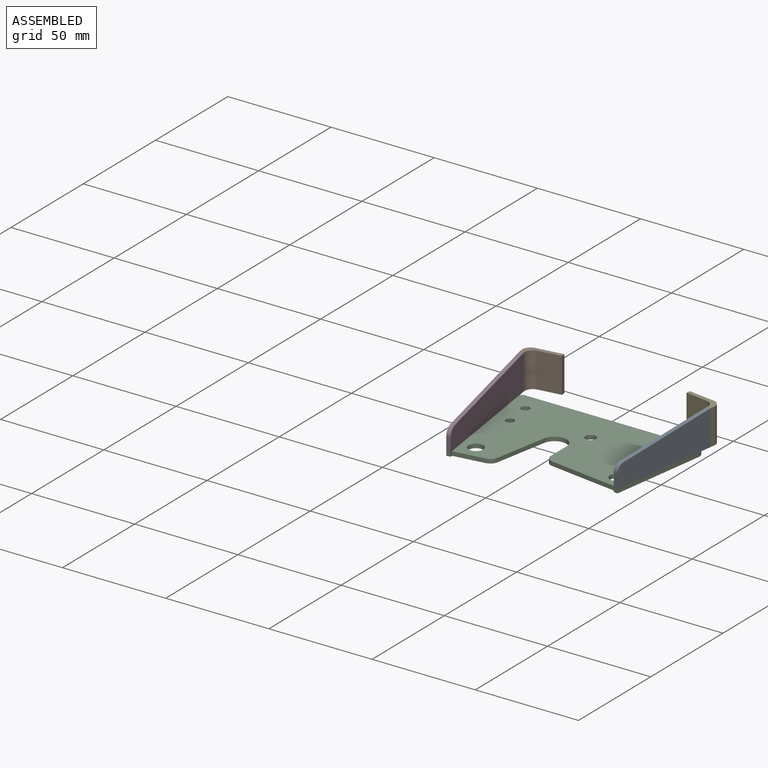
[diagram: assembled view]
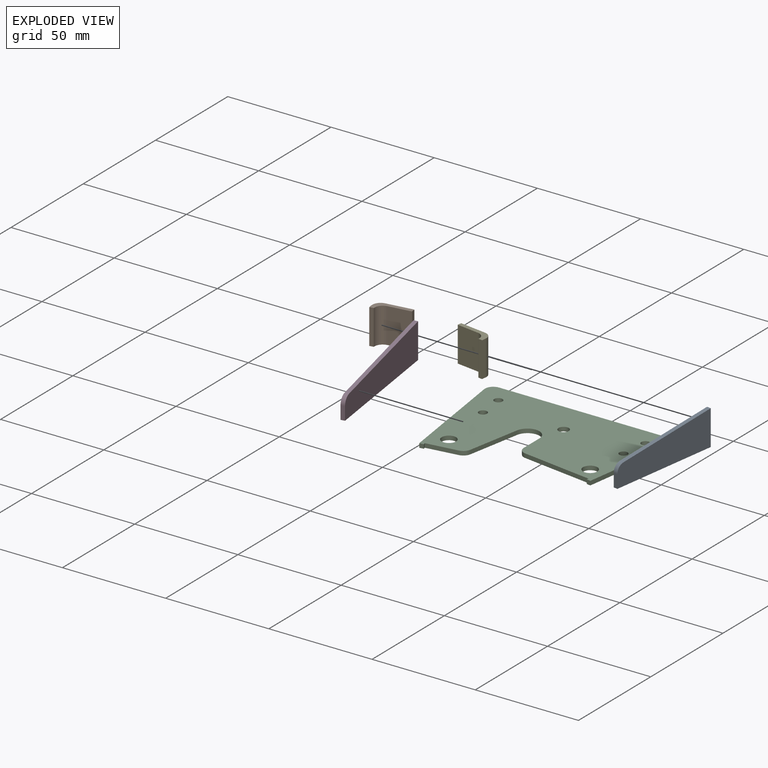
[diagram: exploded view]
GUIDED TOUR — MATED ASSEMBLY (Onshape document 82c68f5eec5fc6f6060abe82, AutoMate assembly 82c68f5eec5fc6f6060abe82_d45fb67a8cab9a437514f168_80f5d379e176ab46315c1f89_default)

This assembly has 5 components, labeled P0..P4 below (a component is one placed occurrence of a part; the same part can appear more than once), held together by 4 mates. A mate is a constraint between two components; its type names the relative motion it leaves free:
  PLANAR — leaves sliding in the plane through the listed point (normal = the listed direction) and rotation about that normal free.
Axis/direction vectors are unit vectors and 'through' points are millimeter coordinates, both in the assembly's world frame.

MATES
  1. PLANAR "Planar 1": P3 <-> P2, direction (0.990, 0.140, 0.000) through (-32.28, -29.59, -0.63) mm
  2. PLANAR "Planar 3": P0 <-> P2, direction (-0.990, 0.144, 0.000) through (41.67, -19.58, -0.63) mm
  3. PLANAR "Planar 4": P4 <-> P0, direction (-0.990, 0.144, 0.000) through (49.45, 33.85, 16.37) mm
  4. PLANAR "Planar 2": P1 <-> P3, direction (0.990, 0.140, 0.000) through (-41.26, 33.78, 16.37) mm

ASSEMBLY ORDER
  1. P4 — the base component [order verified]
  2. P0 [order verified]
  3. P1 [order verified]
  4. P3 [order verified]
  5. P2 [order verified]
Order-tag legend:
  [order verified] — this step's position reverses a verified removal order: the component was checked to insert without passing through the ones already placed.

Of the 5 components, 5 carry the full construction recipe — the FeatureScript program that regenerates the part's solid from scratch; the rest are supplied as boundary geometry only.
Each toured component is shown spotlighted twice — in the assembled view, then in the exploded view, where a leader line traces a displaced component back to its assembled socket (saturated green if recipe-attached, orange if geometry-only; every other component desaturated gray) — followed by its recipe or geometry summary and the mates that hold it.
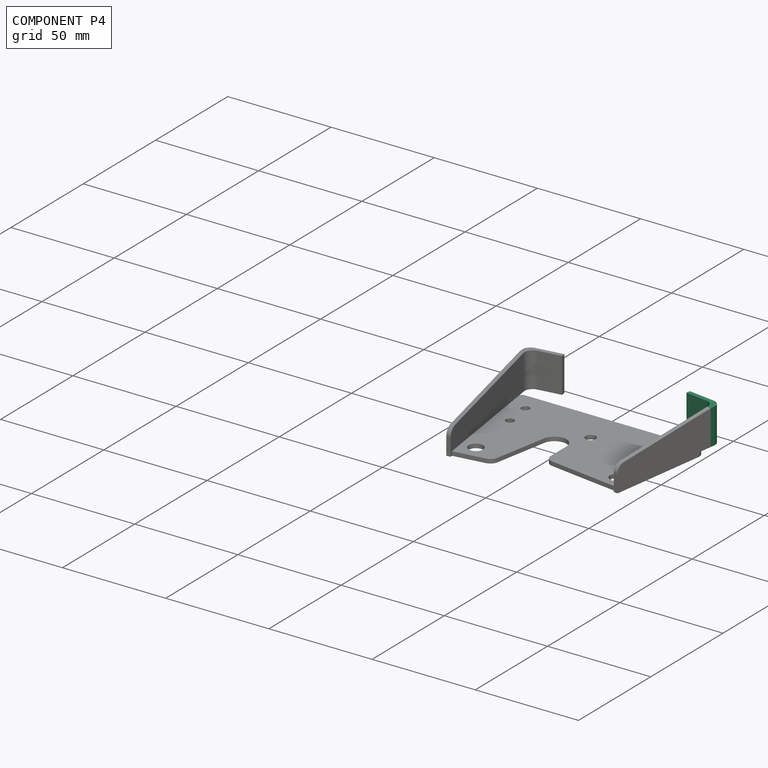
[diagram: component P4 — assembled]
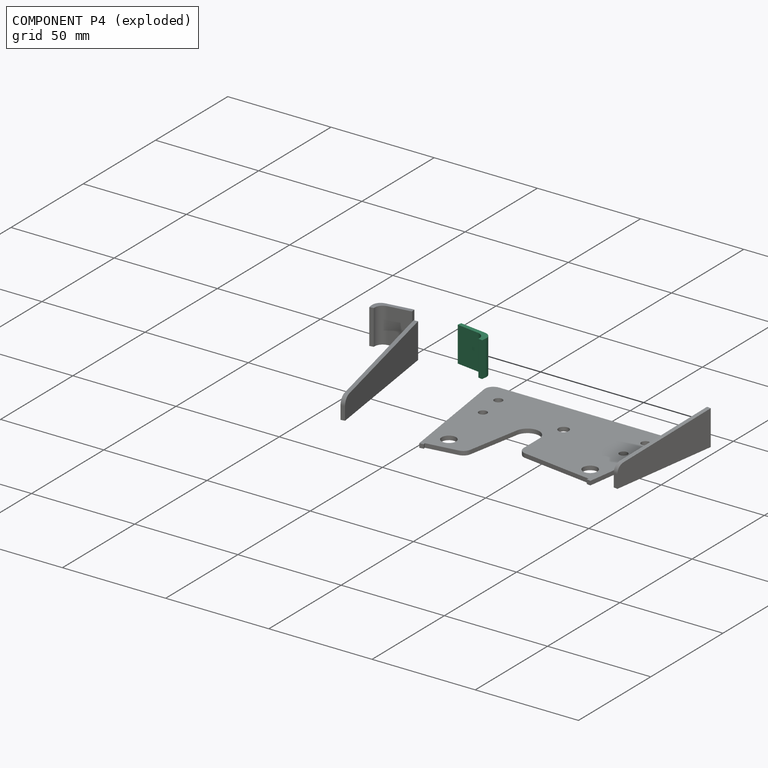
[diagram: component P4 — exploded]
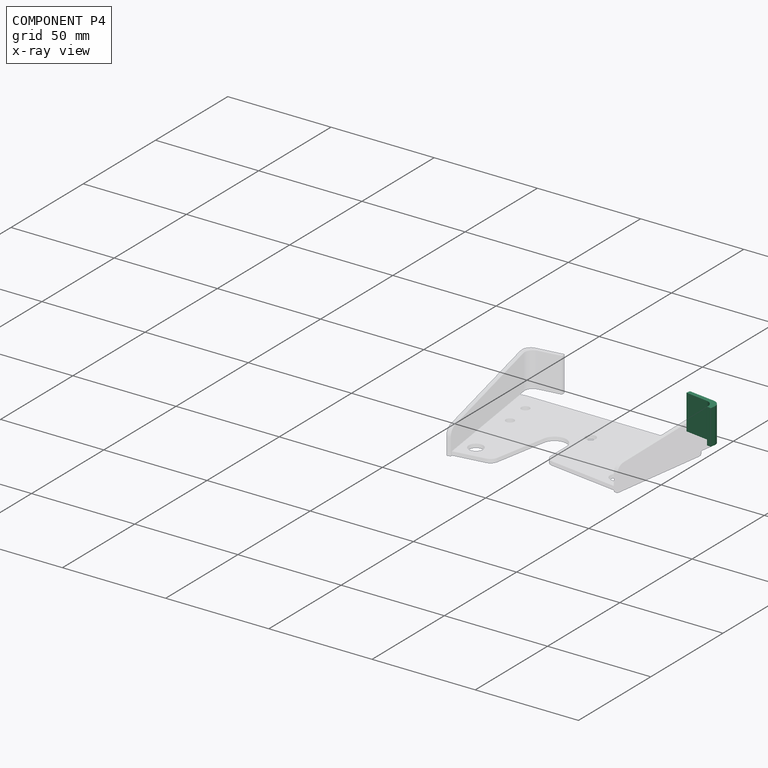
[diagram: component P4 — x-ray view]
COMPONENT P4 — same part as P1 (CADFS 00765707); its construction recipe is shown at P1.
Held by: PLANAR mate "Planar 4" to P0.
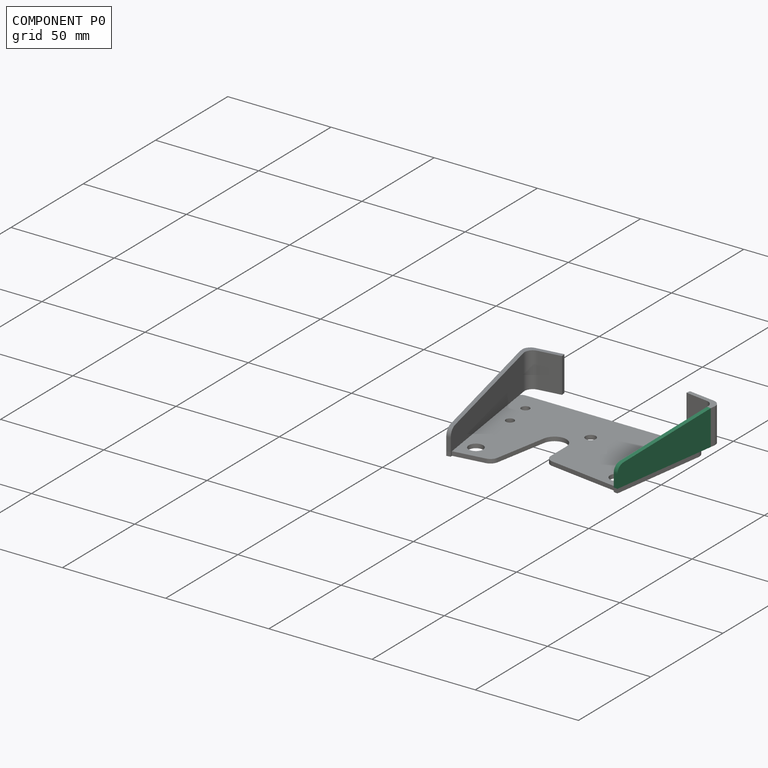
[diagram: component P0 — assembled]
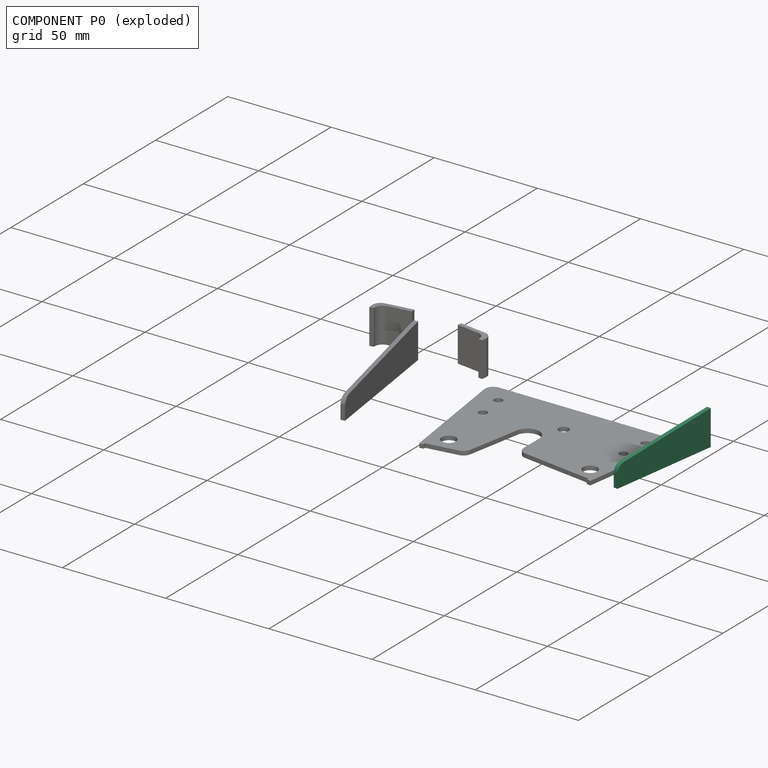
[diagram: component P0 — exploded]
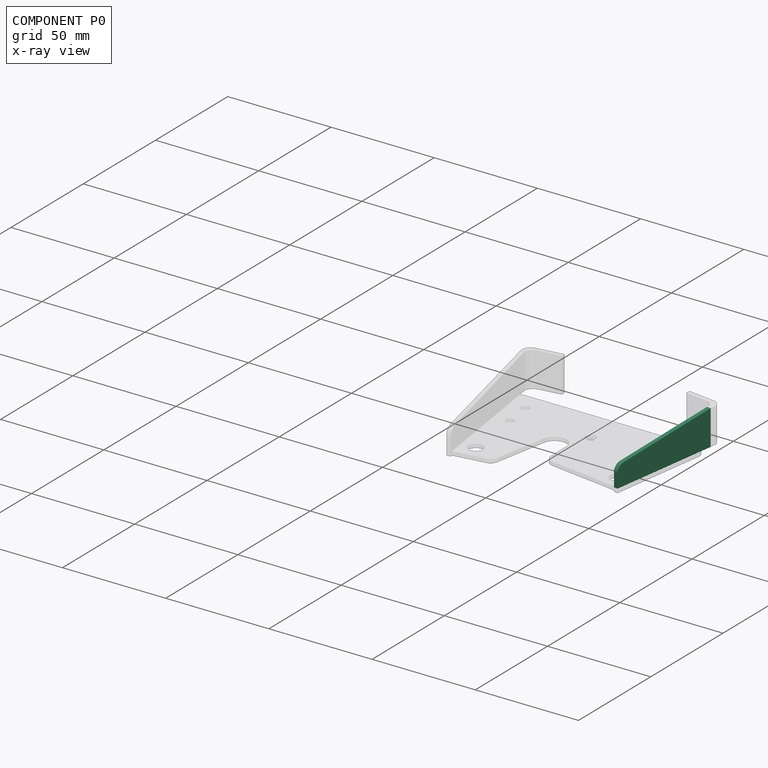
[diagram: component P0 — x-ray view]
COMPONENT P0 — recipe-attached (CADFS 00765706, mesh-verified: the recipe's output STEP matches this component's geometry to below the mesh-comparison resolution (tessellation chordal tolerance ~0.085 mm)).
Held by: PLANAR mate "Planar 3" to P2; PLANAR mate "Planar 4" to P4.
Construction recipe (FeatureScript — the CAD program that rebuilds this solid; sketch coordinates are in the units given by the * unit suffixes, e.g. mm):

FeatureScript 1511;
import(path : "onshape/std/geometry.fs", version : "1511.0");
import(path : "onshape/std/common.fs", version : "1511.0");
const mm = millimeter;
const VERTEX = EntityType.VERTEX;
const EDGE = EntityType.EDGE;
const FACE = EntityType.FACE;
const BODY = EntityType.BODY;
function v(x, y){return vector(x, y);}
function OD(order){return orderDisambiguation(order);}
function OSD(set){return originalSetDisambiguation(set);}
function TD(topology){return topologyDisambiguation(topology);}
function TDD(query){return trueDependencyDisambiguation(query);}
function sQuery(a, b, c) {return sketchEntityQuery(a, b, c);}

annotation { "Feature Type Name" : "Feature", "Feature Type Description" : "" }
export const myFeature = defineFeature(function(context is Context, id is Id, definition is map)
    precondition{}
    {
        {
            var Q0;
            Q0=qCreatedBy(makeId("Right.planeOp"),FACE);
            var sketch = newSketch(context, id + "F0", { "sketchPlane" : qUnion([Q0])});
            skLineSegment(sketch, "E0", {"start": v(44.05, 31.1) * mm, "end": v(44.05, -22.9) * mm});
            skLineSegment(sketch, "E1", {"start": v(44.05, 31.1) * mm, "end": v(27.05, 31.1) * mm});
            skLineSegment(sketch, "E2", {"start": v(44.05, -22.9) * mm, "end": v(37.57, -22.9) * mm});
            skLineSegment(sketch, "E3", {"start": v(27.05, 31.1) * mm, "end": v(33.6, -19.4) * mm});
            skPoint(sketch, "E4.visualSharp", {"position": v(34.05, -22.9) * mm});
            skArc(sketch, "E4.filletArc", {"start": v(33.6, -19.4) * mm, "mid": v(34.93, -21.9) * mm, "end": v(37.57, -22.9) * mm});
            skSolve(sketch);
        }
        {
            var Q0;
            Q0=makeQuery(id+"F0.imprint","IMPRINT",FACE,{"disambiguationData":[TD([[makeQuery(id+"F0.imprint","IMPRINT",EDGE,{"derivedFrom":sQuery(id+"F0.wireOp",EDGE,"E0")}),-1.0]])]});
            extrude(context, id + "F1", {"entities" : qUnion([Q0]), "depth" : 2 * mm, "offsetDistance" : 25 * mm});
        }
    });
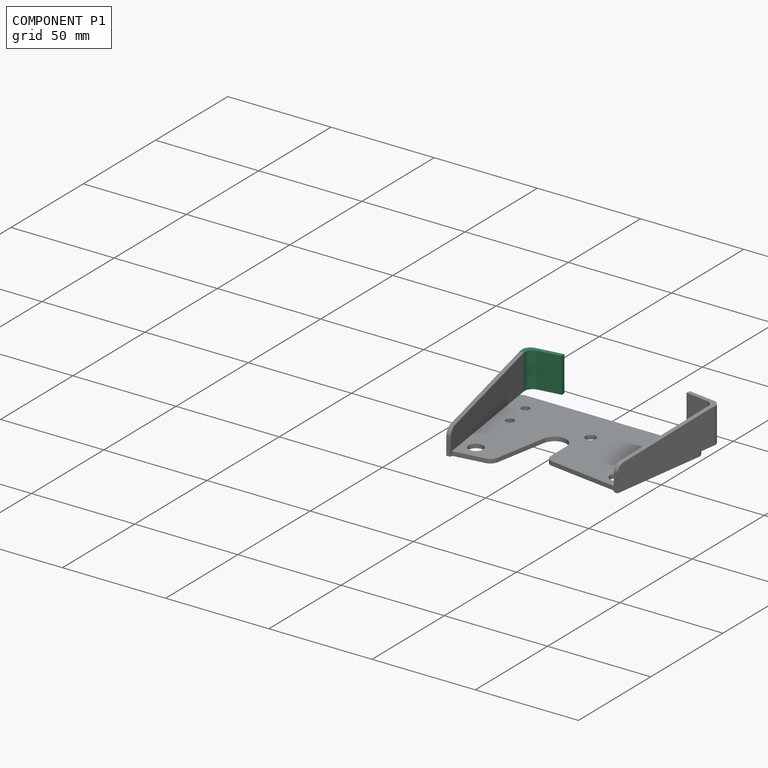
[diagram: component P1 — assembled]
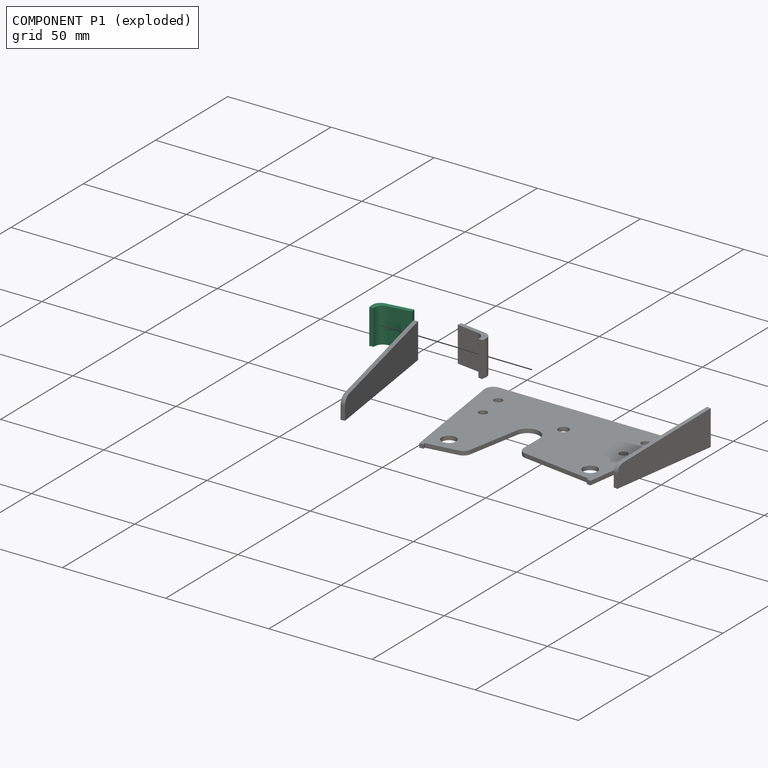
[diagram: component P1 — exploded]
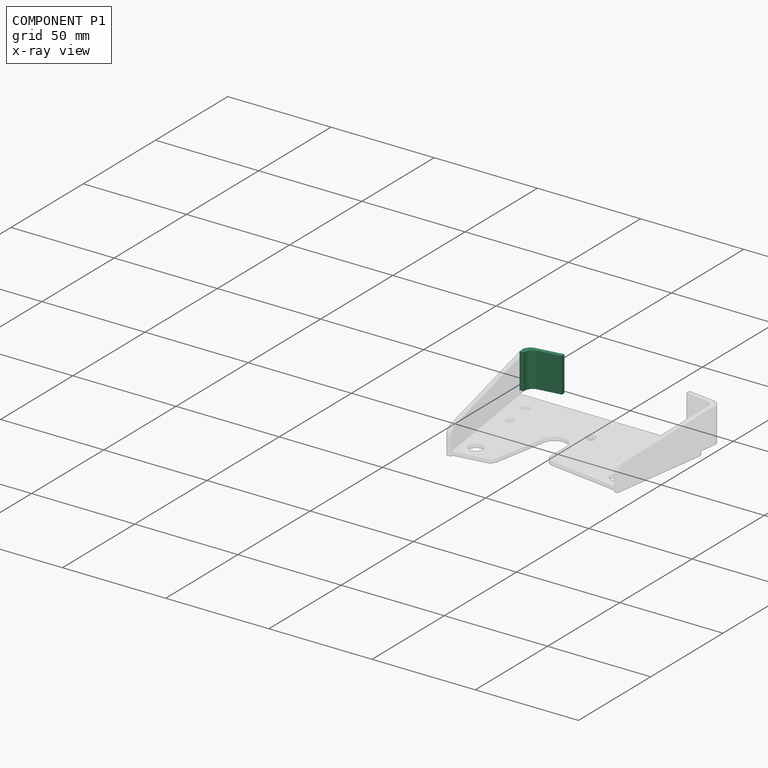
[diagram: component P1 — x-ray view]
COMPONENT P1 — recipe-attached (CADFS 00765707, mesh-verified: the recipe's output STEP matches this component's geometry to below the mesh-comparison resolution (tessellation chordal tolerance ~0.0372 mm)).
Held by: PLANAR mate "Planar 2" to P3.
Construction recipe (FeatureScript — the CAD program that rebuilds this solid; sketch coordinates are in the units given by the * unit suffixes, e.g. mm):

FeatureScript 1511;
import(path : "onshape/std/geometry.fs", version : "1511.0");
import(path : "onshape/std/common.fs", version : "1511.0");
const mm = millimeter;
const VERTEX = EntityType.VERTEX;
const EDGE = EntityType.EDGE;
const FACE = EntityType.FACE;
const BODY = EntityType.BODY;
function v(x, y){return vector(x, y);}
function OD(order){return orderDisambiguation(order);}
function OSD(set){return originalSetDisambiguation(set);}
function TD(topology){return topologyDisambiguation(topology);}
function TDD(query){return trueDependencyDisambiguation(query);}
function sQuery(a, b, c) {return sketchEntityQuery(a, b, c);}

annotation { "Feature Type Name" : "Feature", "Feature Type Description" : "" }
export const myFeature = defineFeature(function(context is Context, id is Id, definition is map)
    precondition{}
    {
        {
            var Q0;
            Q0=qCreatedBy(makeId("Top.planeOp"),FACE);
            var sketch = newSketch(context, id + "F0", { "sketchPlane" : qUnion([Q0])});
            skLineSegment(sketch, "E0", {"start": v(-18.7, 30.7) * mm, "end": v(-31.7, 30.7) * mm});
            skLineSegment(sketch, "E1", {"start": v(-35.7, 26.7) * mm, "end": v(-35.7, 24.7) * mm});
            skLineSegment(sketch, "E2", {"start": v(-18.7, 30.7) * mm, "end": v(-18.7, 28.7) * mm});
            skLineSegment(sketch, "E3", {"start": v(-18.7, 28.7) * mm, "end": v(-29.7, 28.7) * mm});
            skLineSegment(sketch, "E4", {"start": v(-35.7, 24.7) * mm, "end": v(-33.7, 24.7) * mm});
            skLineSegment(sketch, "E5", {"start": v(-33.7, 24.7) * mm, "end": v(-33.7, 24.7) * mm});
            skPoint(sketch, "E6.visualSharp", {"position": v(-35.7, 30.7) * mm});
            skArc(sketch, "E6.filletArc", {"start": v(-31.7, 30.7) * mm, "mid": v(-34.52, 29.52) * mm, "end": v(-35.7, 26.7) * mm});
            skPoint(sketch, "E7.visualSharp", {"position": v(-33.7, 28.7) * mm});
            skArc(sketch, "E7.filletArc", {"start": v(-29.7, 28.7) * mm, "mid": v(-32.52, 27.52) * mm, "end": v(-33.7, 24.7) * mm});
            skSolve(sketch);
        }
        {
            var Q0;
            Q0=makeQuery(id+"F0.imprint","IMPRINT",FACE,{"disambiguationData":[TD([[makeQuery(id+"F0.imprint","IMPRINT",EDGE,{"derivedFrom":sQuery(id+"F0.wireOp",EDGE,"E0")}),1.0]])]});
            extrude(context, id + "F1", {"entities" : qUnion([Q0]), "depth" : 17 * mm, "offsetDistance" : 25 * mm});
        }
    });
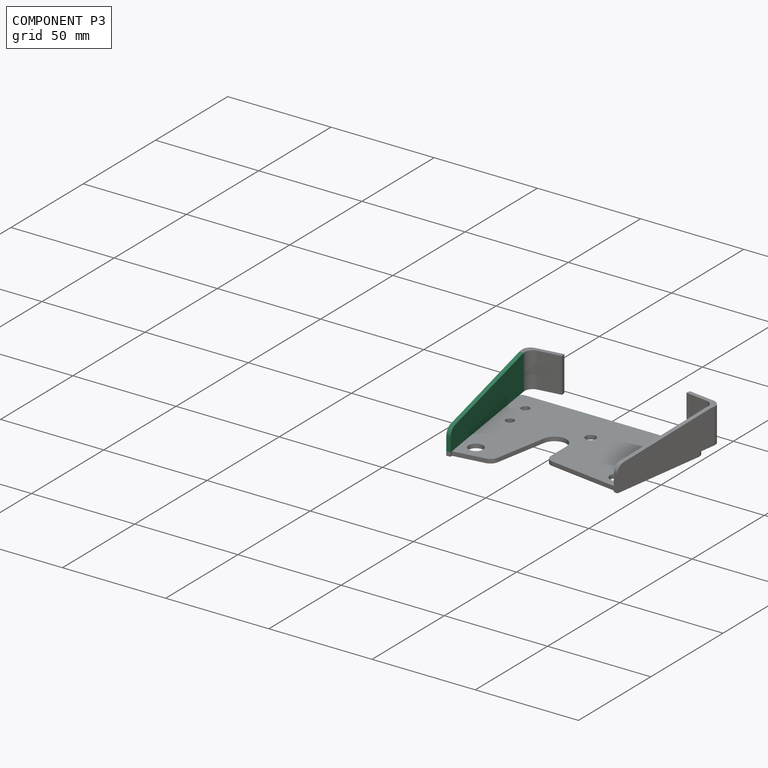
[diagram: component P3 — assembled]
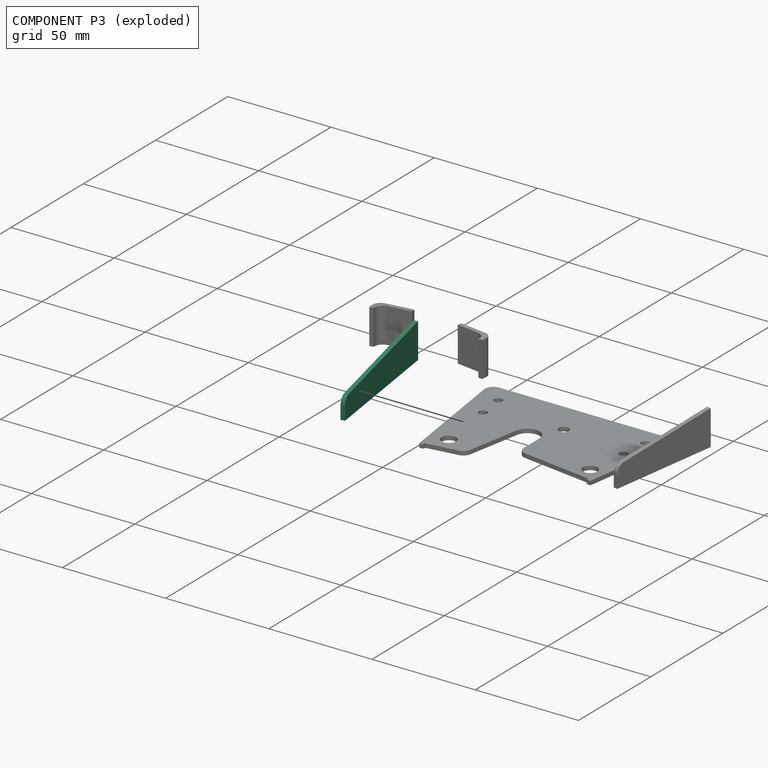
[diagram: component P3 — exploded]
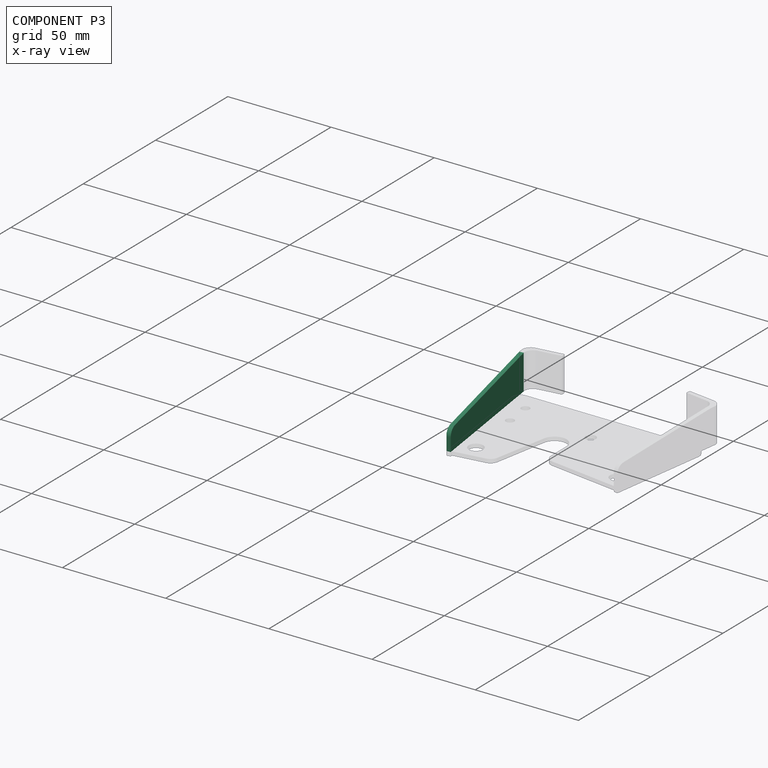
[diagram: component P3 — x-ray view]
COMPONENT P3 — recipe-attached (CADFS 00765708, mesh-verified: the recipe's output STEP matches this component's geometry to below the mesh-comparison resolution (tessellation chordal tolerance ~0.0994 mm)).
Held by: PLANAR mate "Planar 1" to P2; PLANAR mate "Planar 2" to P1.
Construction recipe (FeatureScript — the CAD program that rebuilds this solid; sketch coordinates are in the units given by the * unit suffixes, e.g. mm):

FeatureScript 1511;
import(path : "onshape/std/geometry.fs", version : "1511.0");
import(path : "onshape/std/common.fs", version : "1511.0");
const mm = millimeter;
const VERTEX = EntityType.VERTEX;
const EDGE = EntityType.EDGE;
const FACE = EntityType.FACE;
const BODY = EntityType.BODY;
function v(x, y){return vector(x, y);}
function OD(order){return orderDisambiguation(order);}
function OSD(set){return originalSetDisambiguation(set);}
function TD(topology){return topologyDisambiguation(topology);}
function TDD(query){return trueDependencyDisambiguation(query);}
function sQuery(a, b, c) {return sketchEntityQuery(a, b, c);}

annotation { "Feature Type Name" : "Feature", "Feature Type Description" : "" }
export const myFeature = defineFeature(function(context is Context, id is Id, definition is map)
    precondition{}
    {
        {
            var Q0;
            Q0=qCreatedBy(makeId("Right.planeOp"),FACE);
            var sketch = newSketch(context, id + "F0", { "sketchPlane" : qUnion([Q0])});
            skLineSegment(sketch, "E0", {"start": v(-48.58, 42.2) * mm, "end": v(-48.58, -21.8) * mm});
            skLineSegment(sketch, "E1", {"start": v(-48.58, 42.2) * mm, "end": v(-31.58, 42.2) * mm});
            skLineSegment(sketch, "E2", {"start": v(-48.58, -21.8) * mm, "end": v(-42.17, -21.8) * mm});
            skLineSegment(sketch, "E3", {"start": v(-38.2, -18.24) * mm, "end": v(-31.58, 42.2) * mm});
            skPoint(sketch, "E4.visualSharp", {"position": v(-38.58, -21.8) * mm});
            skArc(sketch, "E4.filletArc", {"start": v(-42.17, -21.8) * mm, "mid": v(-39.5, -20.78) * mm, "end": v(-38.2, -18.24) * mm});
            skSolve(sketch);
        }
        {
            var Q0;
            Q0=makeQuery(id+"F0.imprint","IMPRINT",FACE,{"disambiguationData":[TD([[makeQuery(id+"F0.imprint","IMPRINT",EDGE,{"derivedFrom":sQuery(id+"F0.wireOp",EDGE,"E0")}),1.0]])]});
            extrude(context, id + "F1", {"entities" : qUnion([Q0]), "depth" : 2 * mm, "offsetDistance" : 25 * mm});
        }
    });
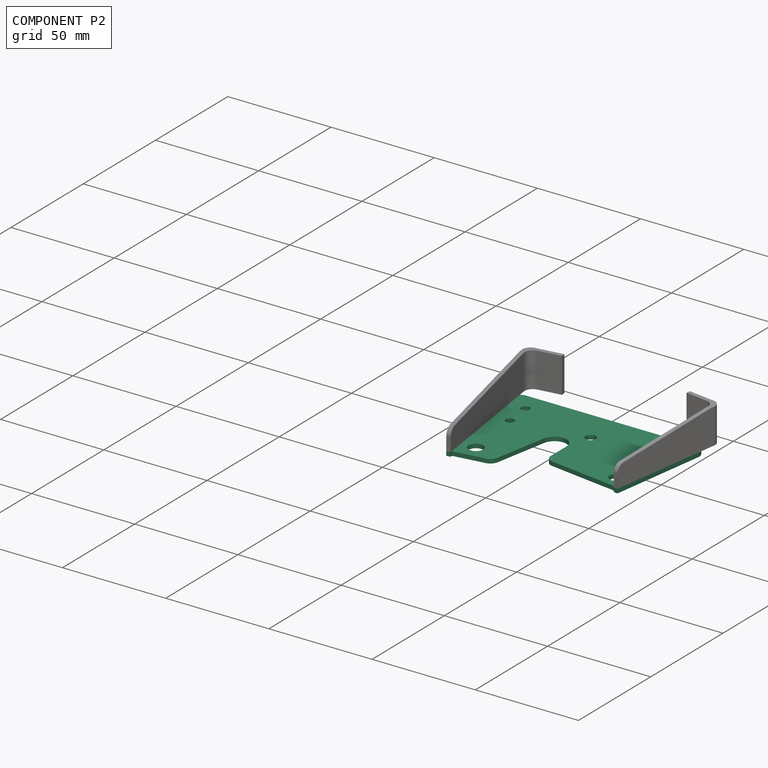
[diagram: component P2 — assembled]
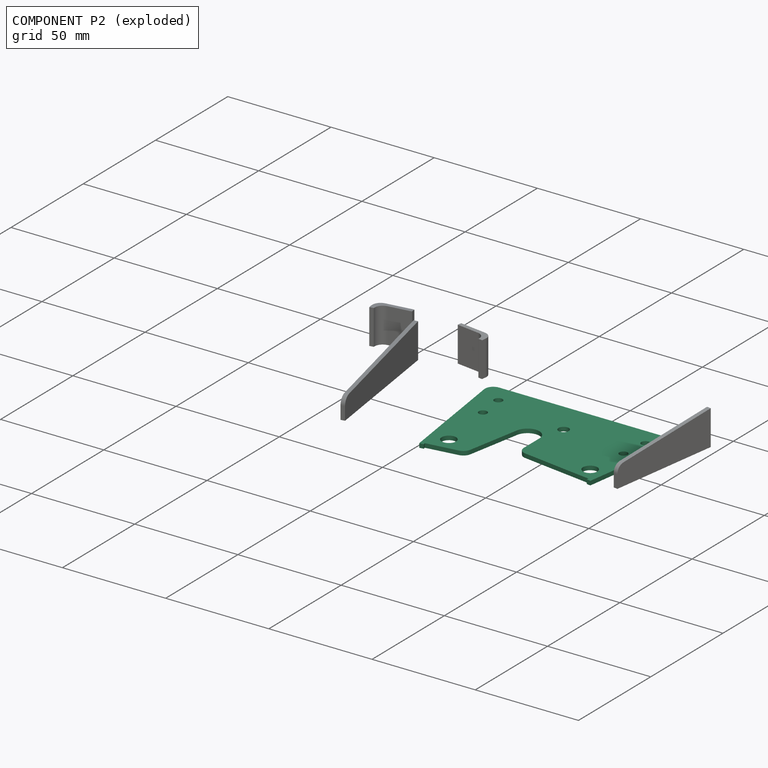
[diagram: component P2 — exploded]
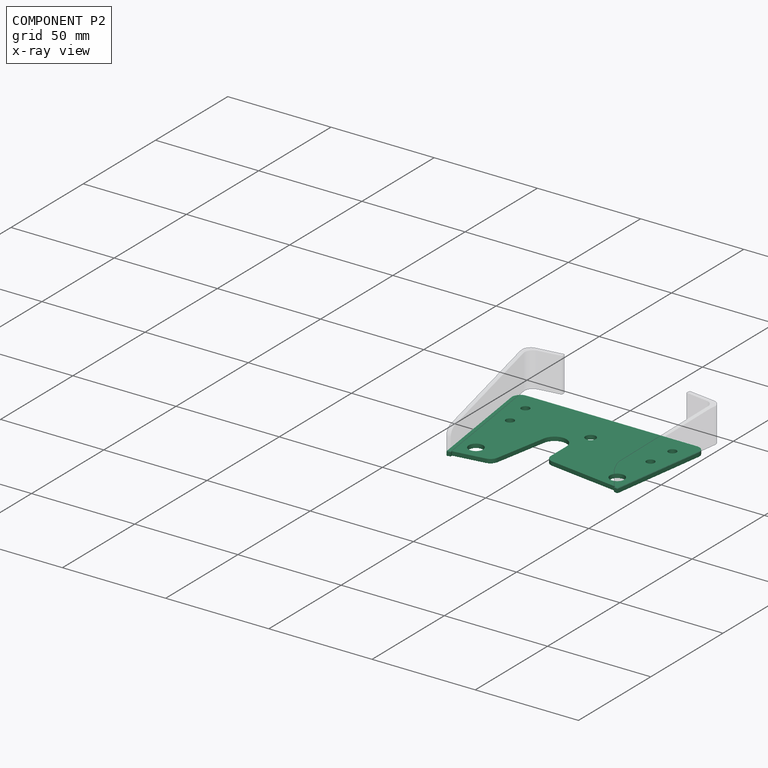
[diagram: component P2 — x-ray view]
COMPONENT P2 — recipe-attached (CADFS 00765705, mesh-verified: the recipe's output STEP matches this component's geometry to below the mesh-comparison resolution (tessellation chordal tolerance ~0.164 mm)).
Held by: PLANAR mate "Planar 1" to P3; PLANAR mate "Planar 3" to P0.
Construction recipe (FeatureScript — the CAD program that rebuilds this solid; sketch coordinates are in the units given by the * unit suffixes, e.g. mm):

FeatureScript 1511;
import(path : "onshape/std/geometry.fs", version : "1511.0");
import(path : "onshape/std/common.fs", version : "1511.0");
const mm = millimeter;
const VERTEX = EntityType.VERTEX;
const EDGE = EntityType.EDGE;
const FACE = EntityType.FACE;
const BODY = EntityType.BODY;
function v(x, y){return vector(x, y);}
function OD(order){return orderDisambiguation(order);}
function OSD(set){return originalSetDisambiguation(set);}
function TD(topology){return topologyDisambiguation(topology);}
function TDD(query){return trueDependencyDisambiguation(query);}
function sQuery(a, b, c) {return sketchEntityQuery(a, b, c);}

annotation { "Feature Type Name" : "Feature", "Feature Type Description" : "" }
export const myFeature = defineFeature(function(context is Context, id is Id, definition is map)
    precondition{}
    {
        {
            var Q0;
            Q0=qCreatedBy(makeId("Top.planeOp"),FACE);
            var sketch = newSketch(context, id + "F0", { "sketchPlane" : qUnion([Q0])});
            skLineSegment(sketch, "E0", {"start": v(-34.56, 39.14) * mm, "end": v(48.21, 39.14) * mm});
            skLineSegment(sketch, "E1", {"start": v(-38.52, 34.58) * mm, "end": v(-30.66, -20.86) * mm});
            skLineSegment(sketch, "E2", {"start": v(52.17, 34.57) * mm, "end": v(45.55, -10.86) * mm});
            skLineSegment(sketch, "E3", {"start": v(-28.68, -20.58) * mm, "end": v(-13.71, -18.46) * mm});
            skLineSegment(sketch, "E4", {"start": v(43.57, -10.57) * mm, "end": v(9.4, -5.59) * mm});
            skArc(sketch, "E5", {"start": v(5.97, 9.1) * mm, "mid": v(0.73, 15.06) * mm, "end": v(-5.62, 10.3) * mm});
            skLineSegment(sketch, "E6", {"start": v(-10.34, -15.22) * mm, "end": v(-5.62, 10.3) * mm});
            skLineSegment(sketch, "E7", {"start": v(5.97, -1.63) * mm, "end": v(5.97, 9.1) * mm});
            skPoint(sketch, "E8.visualSharp", {"position": v(-10.86, -18.05) * mm});
            skArc(sketch, "E8.filletArc", {"start": v(-13.71, -18.46) * mm, "mid": v(-11.5, -17.38) * mm, "end": v(-10.34, -15.22) * mm});
            skPoint(sketch, "E9.visualSharp", {"position": v(-39.16, 39.14) * mm});
            skArc(sketch, "E9.filletArc", {"start": v(-34.56, 39.14) * mm, "mid": v(-37.58, 37.76) * mm, "end": v(-38.52, 34.58) * mm});
            skPoint(sketch, "E10.visualSharp", {"position": v(52.84, 39.14) * mm});
            skArc(sketch, "E10.filletArc", {"start": v(52.17, 34.57) * mm, "mid": v(51.24, 37.76) * mm, "end": v(48.21, 39.14) * mm});
            skPoint(sketch, "E11.visualSharp", {"position": v(5.97, -5.1) * mm});
            skArc(sketch, "E11.filletArc", {"start": v(5.97, -1.63) * mm, "mid": v(6.94, -4.25) * mm, "end": v(9.4, -5.59) * mm});
            skPoint(sketch, "E12.endSnap0", {"position": v(-22.19, -19.66) * mm});
            skCircle(sketch, "E13", {"center": v(-27.93, 29.21) * mm, "radius": 2 * mm});
            skCircle(sketch, "E14", {"center": v(-26.36, 16.3) * mm, "radius": 2 * mm});
            skCircle(sketch, "E15", {"center": v(-22.96, -12.12) * mm, "radius": 3.5 * mm});
            skCircle(sketch, "E16", {"center": v(9.04, 21.56) * mm, "radius": 2.5 * mm});
            skCircle(sketch, "E17", {"center": v(43.04, 29.56) * mm, "radius": 2 * mm});
            skCircle(sketch, "E18", {"center": v(41.47, 16.66) * mm, "radius": 2 * mm});
            skCircle(sketch, "E19", {"center": v(39.16, -3.05) * mm, "radius": 3.5 * mm});
            skLineSegment(sketch, "E20", {"start": v(-30.66, -20.86) * mm, "end": v(-30.52, -21.85) * mm});
            skLineSegment(sketch, "E21", {"start": v(-30.52, -21.85) * mm, "end": v(-28.54, -21.57) * mm});
            skLineSegment(sketch, "E22", {"start": v(-28.54, -21.57) * mm, "end": v(-28.68, -20.58) * mm});
            skLineSegment(sketch, "E23", {"start": v(45.55, -10.86) * mm, "end": v(45.4, -11.85) * mm});
            skLineSegment(sketch, "E24", {"start": v(45.4, -11.85) * mm, "end": v(43.43, -11.56) * mm});
            skLineSegment(sketch, "E25", {"start": v(43.43, -11.56) * mm, "end": v(43.57, -10.57) * mm});
            skSolve(sketch);
        }
        {
            var Q0;
            Q0=makeQuery(id+"F0.imprint","IMPRINT",FACE,{"disambiguationData":[TD([[makeQuery(id+"F0.imprint","IMPRINT",EDGE,{"derivedFrom":sQuery(id+"F0.wireOp",EDGE,"E0")}),-1.0]])]});
            extrude(context, id + "F1", {"entities" : qUnion([Q0]), "depth" : 2 * mm, "offsetDistance" : 25 * mm});
        }
    });
PROVENANCE & LICENSES
Assembly (occurrences, transforms, mates, per-part STEP geometry): AutoMate dataset, Zenodo record 7776208, CC0.
Construction recipes: CADFS (HuggingFace VladPyatov/CADFS, CC-BY-4.0, layered over the ABC dataset), FeatureScript reconstruction programs keyed by ABC model id.
Join: ABC meta listings map ABC model id -> Onshape documentId; within a shared document, parts are matched by geometric signature (bounding-box dims + volume at 0.1% relative tolerance, exact B-rep face/solid counts).
Verification: 5 of this assembly's 5 components carry a recipe attachment, and every attachment is mesh-verified: the CADFS STEP and the AutoMate member STEP were compared as meshes in their shared local frame (symmetric sampled-point-to-mesh distance); worst across the 5 attachments: below the mesh-comparison resolution (tessellation chordal tolerance ~0.164 mm) on a 109 mm part.
Renders: orthographic iso camera (az 35 / el 25); the floor grid conveys scale (grid pitch printed in each image; no ruler). In the exploded view each component is displaced by its stored offset vector: the offsets alone carry the explosion direction (mate normal/axis signs are not orientation cues and do not encode it), and separation distances are assigned per mate-chain, not proportionally to assembly-order depth.
